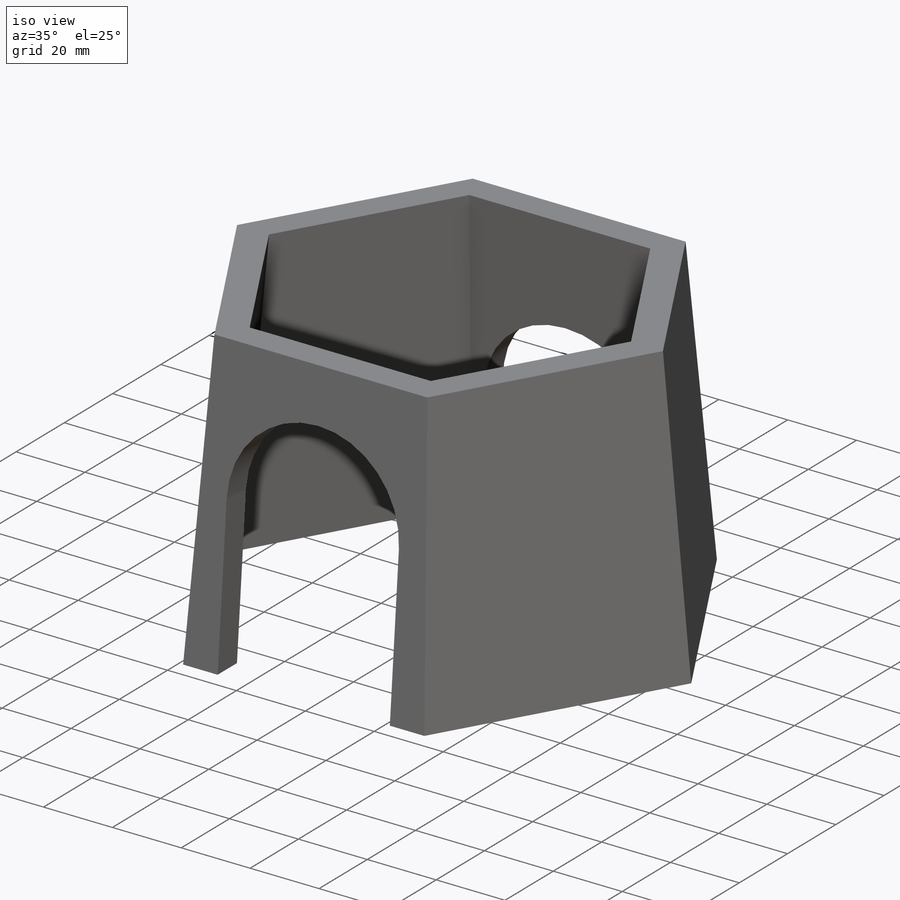
[diagram: iso view]
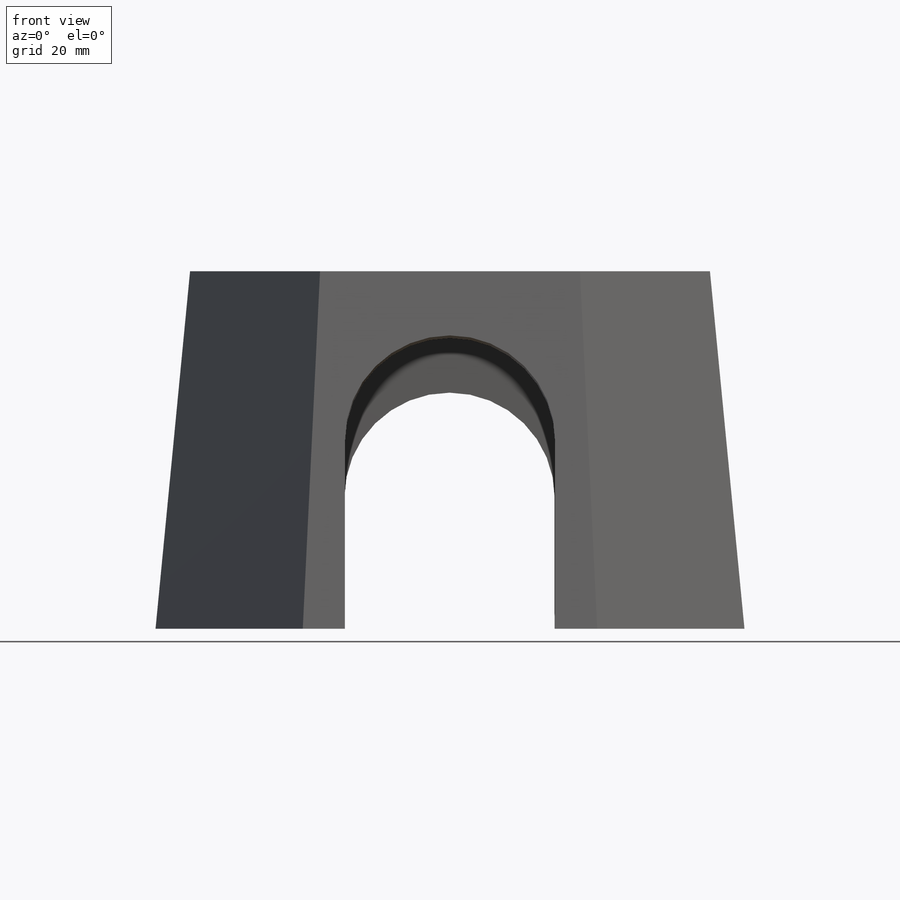
[diagram: front view]
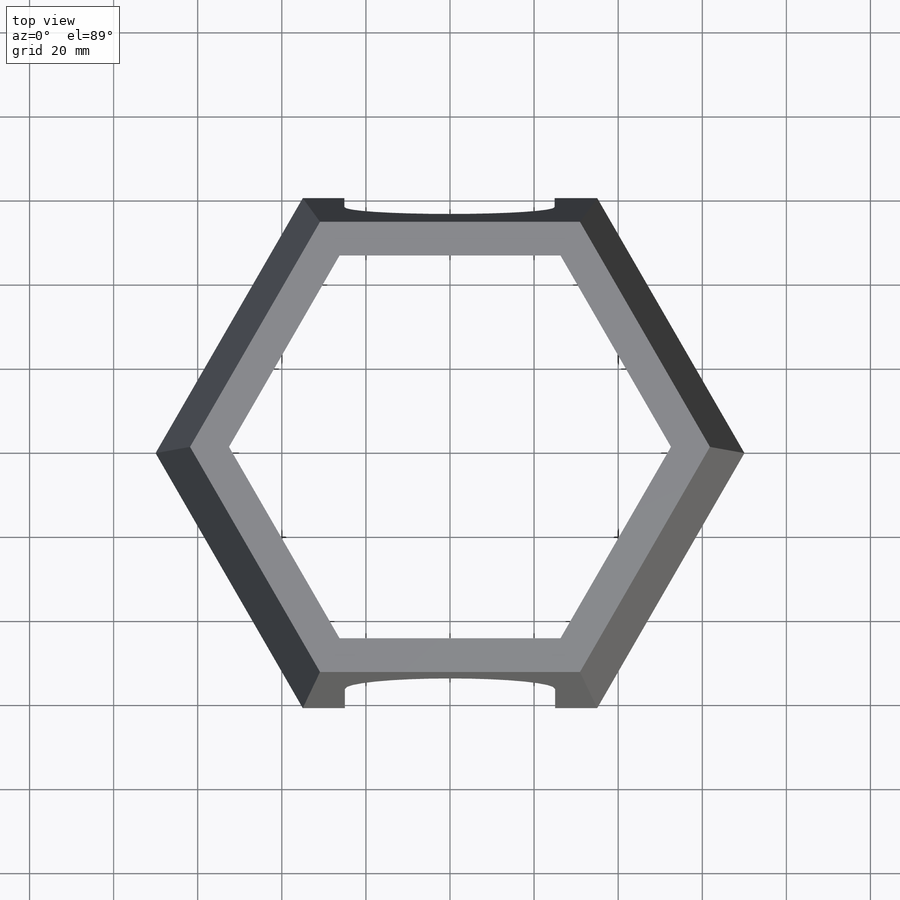
[diagram: top view]
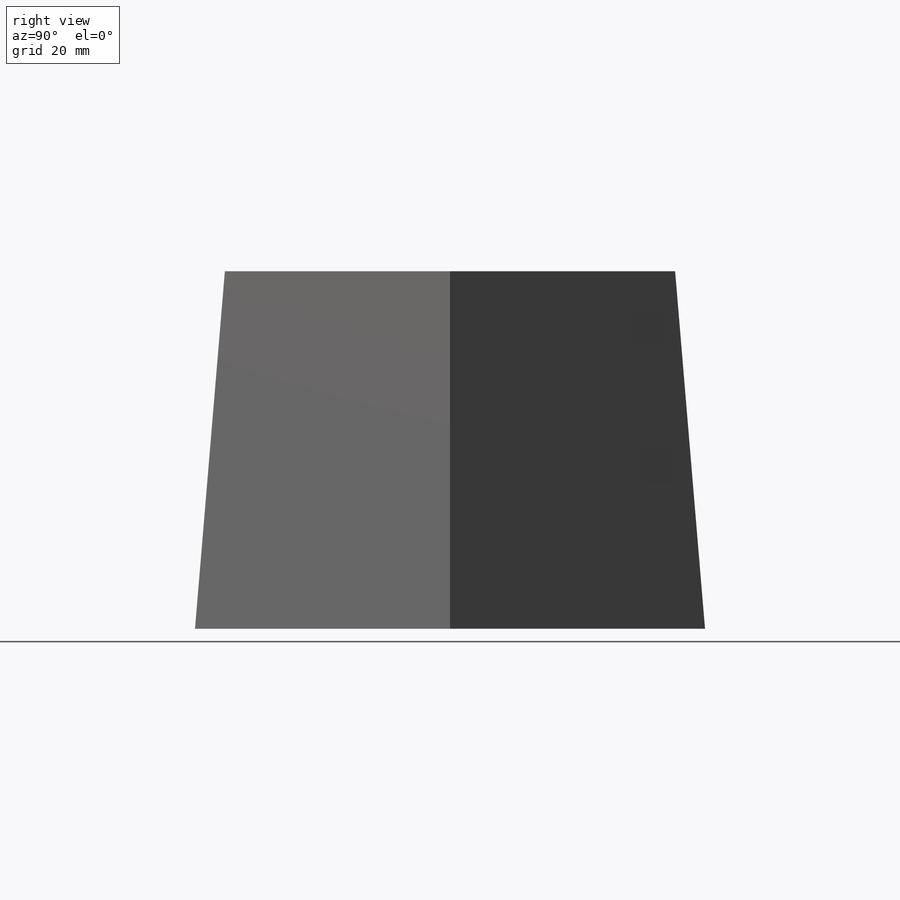
[diagram: right view]
SOLIDWORKS PART (.sldprt)
format: sldprt  version: not decoded by parser v0  size: 782,336 bytes
history: native  units: mm
features: sketch x32, cut_extrude x17, fillet x11, extrude x9, plane x3, shell x2, material x1 (+12 scaffold rows collapsed)
feature tree (87):
  scaffold x12  (default folders/planes/origin — collapsed)
  material  "Material <not specified>"
  sketch  "Sketch1"  dims[D1=85.0mm D2=0.0deg]
  plane  "Plane1"  Offset=115mm
  sketch  "Sketch2"  dims[c1.D1=70.0mm c1.D2=0.0deg c2.D1=0.5deg]
  shell  "Shell1"  Thickness=10mm
  sketch  "Sketch3"  dims[D1=70.0mm]
  sketch  "Sketch5"  dims[D1=0.0mm D2=8.0mm]
  extrude  "Boss-Extrude4"  Depth=12.78mm
  sketch  "Sketch6"  dims[c1.D1=60.0mm c2.D1=0.0mm c2.D2=60.0deg]
  plane  "Plane2"  Offset=215mm
  sketch  "Sketch7"  dims[c1.D1=~86.655209mm c2.D1=180.0deg c3.D1=40.0mm c3.D2=~40.090914mm c4.D2=180.0deg c5.D2=50.0mm]
  shell  "Loft-Thin3"  Thickness=8mm
  sketch  "Sketch8"  dims[D1=50.0mm D2=10.0mm D3=45.0mm D4=45.0mm]
  cut_extrude  "Cut-Extrude1"  Depth=10mm
  sketch  "Sketch9"  dims[D1=50.0mm D2=10.75mm]
  cut_extrude  "Cut-Extrude3"  Depth=10mm
  sketch  "Sketch11"  dims[c1.D2=25.0mm c1.D1=33.0mm c2.D2=32.0mm c2.D1=32.0mm]
  cut_extrude  "Cut-Extrude7"  Depth=10mm
  sketch  "Sketch12"  dims[D1=~7.990215mm]
  cut_extrude  "Cut-Extrude9"  Depth=1mm
  sketch  "Sketch13"
  cut_extrude  "Cut-Extrude10"  Depth=0.5mm
  sketch  "Sketch14"
  cut_extrude  "Cut-Extrude12"  Depth=1mm
  sketch  "Sketch15"
  extrude  "Boss-Extrude7"  Depth=11mm
  sketch  "Sketch17"  dims[c1.D1=115.0mm c1.D2=~85.337889mm c1.D3=38.0mm c1.D4=~37.730147mm c2.D3=33.0mm c2.D4=~37.730147mm]
  extrude  "Boss-Extrude8"  Depth=60mm
  sketch  "Sketch18"  dims[c1.D1=8.1mm c1.D2=8.1mm c2.D1=57.5mm c3.D1=~30.886157deg c3.D2=~36.183544mm c4.D2=30.89deg c4.D1=~63.231724mm c5.D1=28.0deg c5.D2=~32.426057mm c6.D2=28.0deg c6.D3=~34.897694mm c7.D3=35.0deg c8.D3=~31.591328mm c9.D3=~153.410634deg c10.D3=~31.591328mm]
  cut_extrude  "Cut-Extrude16"  [1 undecoded]
  fillet  "Fillet1"  Radius=5mm
  fillet  "Fillet3"  Radius=2mm
  fillet  "Fillet4"  Radius=2mm
  fillet  "Fillet5"  Radius=2mm
  fillet  "Fillet6"  Radius=2mm
  fillet  "Fillet7"  Radius=2mm
  fillet  "Fillet8"  Radius=2mm
  fillet  "Fillet9"  Radius=2mm
  fillet  "Fillet10"  Radius=2mm
  fillet  "Fillet11"  Radius=2mm
  fillet  "Fillet12"  Radius=2mm
  sketch  "Sketch20"  dims[D1=30.0mm D2=25.0mm]
  cut_extrude  "Cut-Extrude17"  [1 undecoded]
  sketch  "Sketch22"  dims[D1=60.0mm D2=12.0mm D3=30.0mm]
  extrude  "Boss-Extrude9"  Depth=30mm
  sketch  "Sketch23"  dims[D1=6.5mm]
  extrude  "Boss-Extrude10"  Depth=40mm
  sketch  "Sketch27"
  plane  "Plane3"
  sketch  "Sketch29"  dims[D1=150.0mm]
  cut_extrude  "Cut-Extrude18"  [1 undecoded]
  sketch  "Sketch30"  dims[c1.D1=0.0mm c1.D2=0.0mm c1.D3=0.0mm c1.D4=0.0mm c1.D5=~27.773428mm c2.D3=16.0mm c2.D5=~96.209977mm c2.D4=16.0mm]
  extrude  "Boss-Extrude11"  Depth=70mm
  sketch  "Sketch31"  dims[D1=28.0mm]
  cut_extrude  "Cut-Extrude20"  [1 undecoded]
  sketch  "Sketch34"  dims[D1=16.0mm]
  cut_extrude  "Cut-Extrude22"  [1 undecoded]
  sketch  "Sketch35"  dims[D1=16.0mm]
  cut_extrude  "Cut-Extrude23"  [1 undecoded]
  sketch  "Sketch36"  dims[D2=35.0mm D1=180.0mm]
  cut_extrude  "Cut-Extrude24"  [1 undecoded]
  sketch  "Sketch37"  dims[D1=50.0mm D2=25.0mm D3=3.0mm D4=5.0mm]
  extrude  "Boss-Extrude12"  Depth=40mm
  sketch  "Sketch38"  dims[D1=5.0mm]
  extrude  "Boss-Extrude13"  Depth=45mm
  sketch  "Sketch40"  dims[D1=200.0mm]
  cut_extrude  "Cut-Extrude25"  [1 undecoded]
  sketch  "Sketch41"  dims[D1=25.0mm]
  extrude  "Boss-Extrude14"  Depth=30mm
  sketch  "Sketch42"
  cut_extrude  "Cut-Extrude26"  [1 undecoded]
  sketch  "Sketch44"
  cut_extrude  "Cut-Extrude27"  [1 undecoded]
  sketch  "Sketch45"
  cut_extrude  "Cut-Extrude28"  [1 undecoded]
decode coverage: 53 of 71 modeling features carry decoded parameters
note: ~ marks probable driven/reference dimensions
note: 11 parameter values undecoded
summary: no parameter record found for 11 features
note: suppression state not decoded; provenance and decode notes live in map.json
